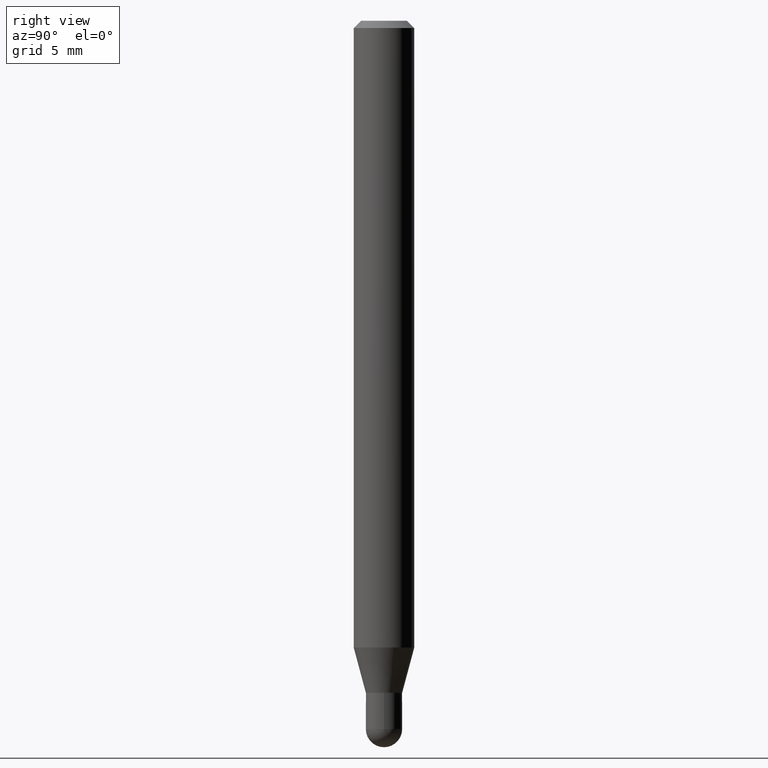
[diagram: clean part render]
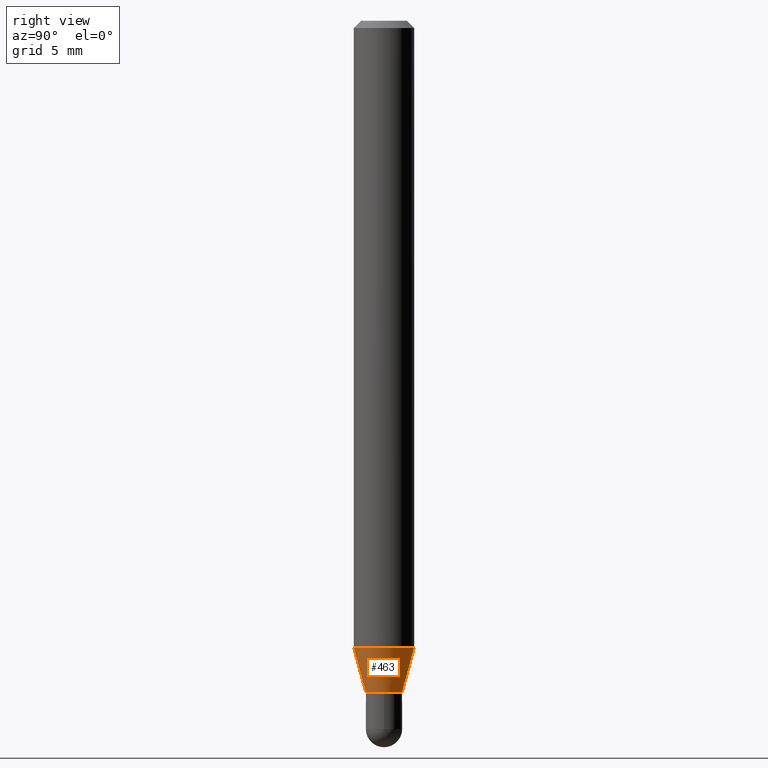
[diagram: same view with one face highlighted and labeled with its STEP entity id]
A machine part, right view. The second image highlights one B-rep face of the part: STEP entity #463.
In plain terms, the highlighted conical surface has half-angle 15 deg.
Its self-contained STEP definition (entity closure, byte-faithful):
#53 = EDGE_CURVE ( 'NONE', #77, #381, #403, .T. ) ;
#77 = VERTEX_POINT ( 'NONE', #280 ) ;
#79 = DIRECTION ( 'NONE',  ( -6.982962677686265922E-15, -1.000000000000000000, 0.000000000000000000 ) ) ;
#83 = VECTOR ( 'NONE', #320, 39.37007874015748143 ) ;
#88 = CARTESIAN_POINT ( 'NONE',  ( 3.393060797888311038E-29, -4.844469267624512368E-15, -1.387500000000000178 ) ) ;
#91 = EDGE_CURVE ( 'NONE', #295, #77, #386, .T. ) ;
#97 = CONICAL_SURFACE ( 'NONE', #127, 0.03750000000000018596, 0.2617993877991581231 ) ;
#127 = AXIS2_PLACEMENT_3D ( 'NONE', #431, #238, #79 ) ;
#136 = CARTESIAN_POINT ( 'NONE',  ( -2.618611004132023625E-16, -0.03750000000000503625, -1.387500000000000178 ) ) ;
#188 = CIRCLE ( 'NONE', #470, 0.06250000000000000000 ) ;
#191 = VERTEX_POINT ( 'NONE', #253 ) ;
#233 = ORIENTED_EDGE ( 'NONE', *, *, #53, .T. ) ;
#238 = DIRECTION ( 'NONE',  ( -2.445449223703287346E-29, 3.491509382071719450E-15, 1.000000000000000000 ) ) ;
#243 = CARTESIAN_POINT ( 'NONE',  ( 2.664535259100728121E-16, 0.03749999999999534261, -1.387500000000000178 ) ) ;
#244 = DIRECTION ( 'NONE',  ( -6.982962677686265922E-15, -1.000000000000000000, 0.000000000000000000 ) ) ;
#247 = ORIENTED_EDGE ( 'NONE', *, *, #91, .T. ) ;
#253 = CARTESIAN_POINT ( 'NONE',  ( -4.364351673553602629E-16, -0.06250000000000455191, -1.294198729810781989 ) ) ;
#260 = CARTESIAN_POINT ( 'NONE',  ( 3.164897279133557354E-29, -4.518707007399648771E-15, -1.294198729810782211 ) ) ;
#262 = CARTESIAN_POINT ( 'NONE',  ( 4.440892098500938748E-16, 0.06249999999999544809, -1.294198729810782433 ) ) ;
#280 = CARTESIAN_POINT ( 'NONE',  ( 3.552713678800835899E-16, 0.03749999999999534261, -1.387500000000000178 ) ) ;
#282 = AXIS2_PLACEMENT_3D ( 'NONE', #88, #307, #244 ) ;
#293 = LINE ( 'NONE', #296, #365 ) ;
#295 = VERTEX_POINT ( 'NONE', #136 ) ;
#296 = CARTESIAN_POINT ( 'NONE',  ( -2.618611004132023625E-16, -0.03750000000000503625, -1.387500000000000178 ) ) ;
#307 = DIRECTION ( 'NONE',  ( -2.445449223703287346E-29, 3.491509382071719450E-15, 1.000000000000000000 ) ) ;
#310 = ORIENTED_EDGE ( 'NONE', *, *, #342, .F. ) ;
#320 = DIRECTION ( 'NONE',  ( 1.839019923739654352E-15, 0.2588190451025325634, 0.9659258262890650926 ) ) ;
#329 = ORIENTED_EDGE ( 'NONE', *, *, #352, .F. ) ;
#342 = EDGE_CURVE ( 'NONE', #295, #191, #293, .T. ) ;
#352 = EDGE_CURVE ( 'NONE', #191, #381, #188, .T. ) ;
#365 = VECTOR ( 'NONE', #457, 39.37007874015748143 ) ;
#378 = DIRECTION ( 'NONE',  ( -6.982962677686265922E-15, -1.000000000000000000, 4.370956789862821150E-15 ) ) ;
#381 = VERTEX_POINT ( 'NONE', #262 ) ;
#386 = CIRCLE ( 'NONE', #282, 0.03750000000000018596 ) ;
#403 = LINE ( 'NONE', #243, #83 ) ;
#431 = CARTESIAN_POINT ( 'NONE',  ( 3.393060797888311038E-29, -4.844469267624512368E-15, -1.387500000000000178 ) ) ;
#452 = DIRECTION ( 'NONE',  ( -2.445449223703287346E-29, 3.491509382071719450E-15, 1.000000000000000000 ) ) ;
#457 = DIRECTION ( 'NONE',  ( -1.807323732225383387E-15, -0.2588190451025257910, 0.9659258262890669799 ) ) ;
#463 = ADVANCED_FACE ( 'NONE', ( #507 ), #97, .T. ) ;
#470 = AXIS2_PLACEMENT_3D ( 'NONE', #260, #452, #378 ) ;
#487 = EDGE_LOOP ( 'NONE', ( #247, #233, #329, #310 ) ) ;
#507 = FACE_OUTER_BOUND ( 'NONE', #487, .T. ) ;